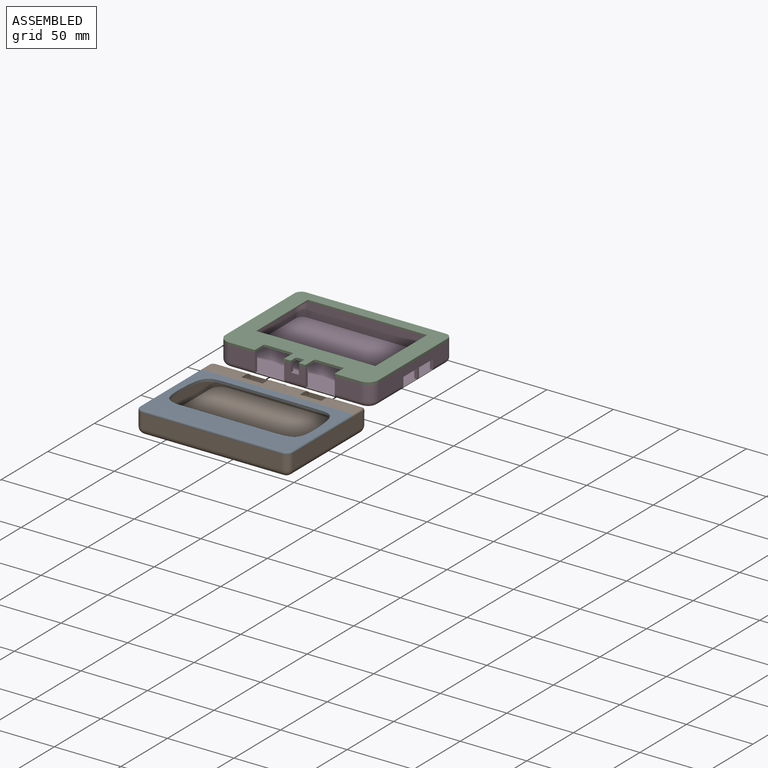
[diagram: assembled view]
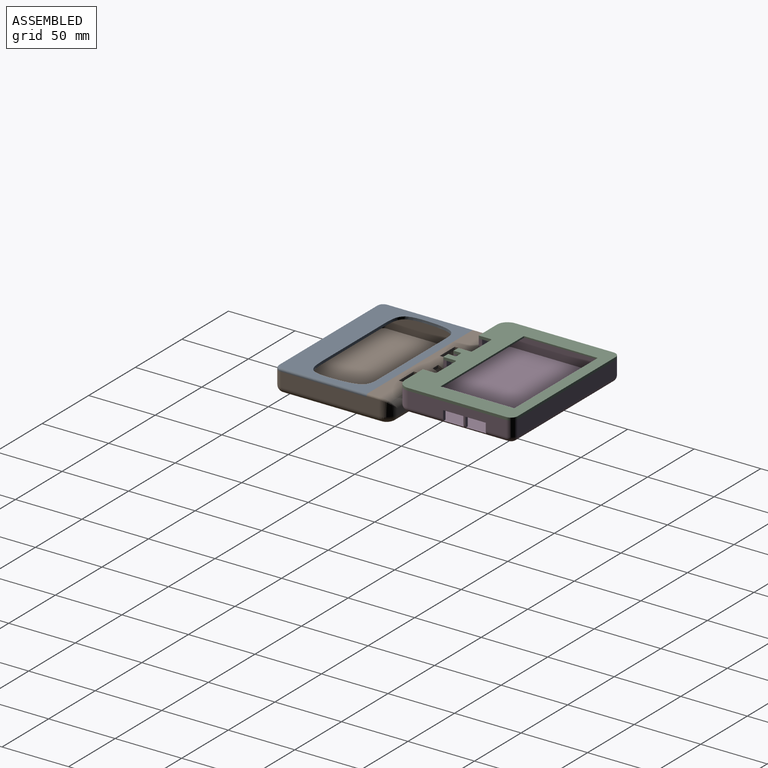
[diagram: assembled view, second angle]
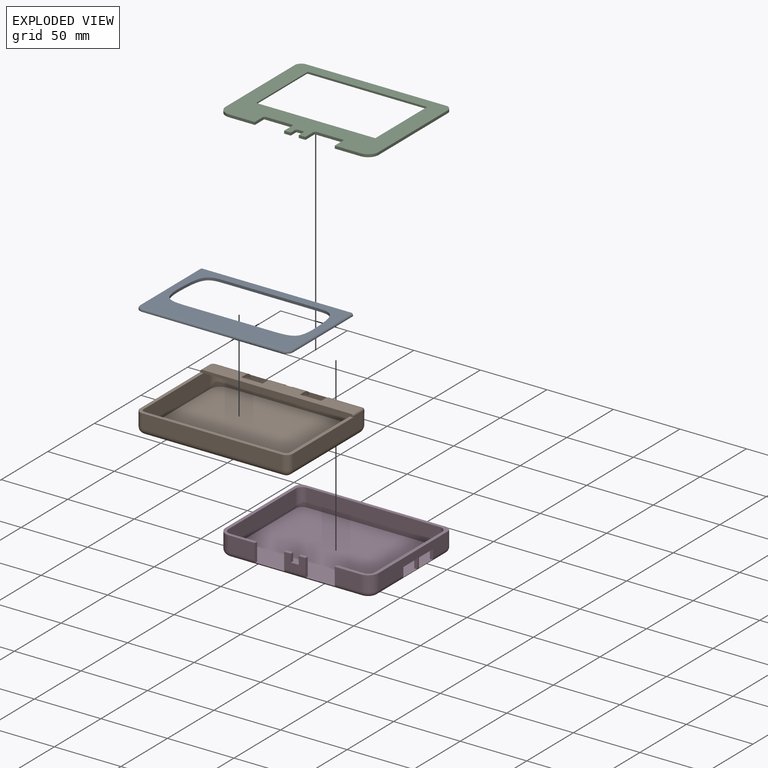
[diagram: exploded view]
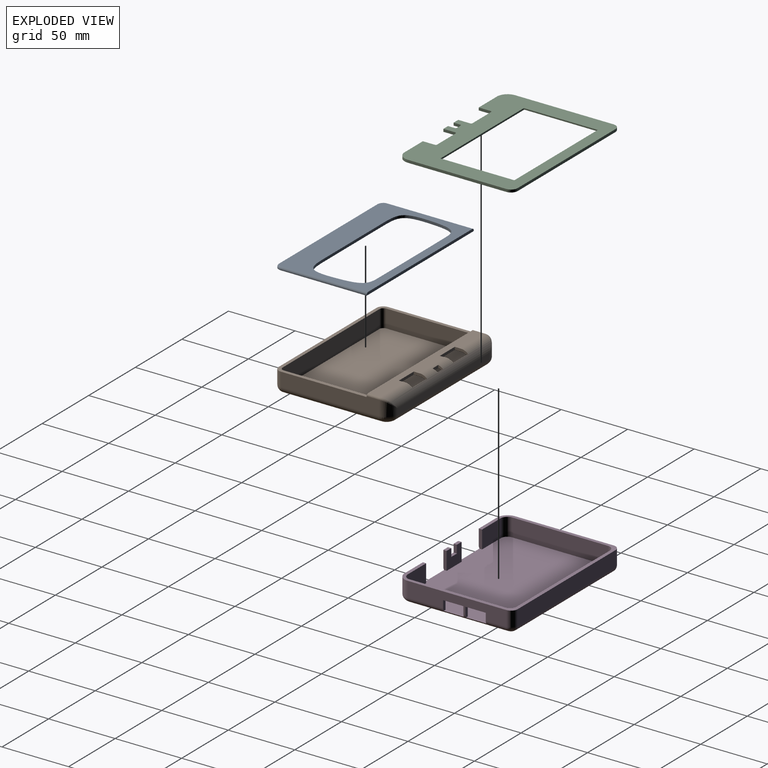
[diagram: exploded view, second angle]
ASSEMBLY  parts=4 mates=3
PART A: 36 faces, bbox 115.8x69.9x2 mm
  f0: plane 2x0mm, normal (0.01,1,0), area 0mm2, adj f28,f29,f30
  f1: extruded ~8.82x2mm, area 17.8mm2, adj f2,f26,f29,f30
  f2: plane 69.31x2mm, normal (0,1,0), area 138.6mm2, adj f1,f3,f29,f30
  f3: extruded ~8.8x2mm, area 17.8mm2, adj f2,f4,f29,f30
  f4: extruded ~4.99x3.15mm, area 12mm2, adj f3,f5,f29,f30
  f5: extruded ~2.78x2mm, area 6.2mm2, adj f4,f6,f29,f30
  f6: extruded ~8.64x2mm, area 17.5mm2, adj f5,f7,f29,f30
  f7: extruded ~11.97x2mm, area 24mm2, adj f6,f8,f29,f30
  f8: extruded ~9.53x2mm, area 19.5mm2, adj f7,f9,f29,f30
  f9: extruded ~3.98x2.46mm, area 9.4mm2, adj f8,f10,f29,f30
  f10: extruded ~7.81x2.47mm, area 16.7mm2, adj f9,f11,f29,f30
  f11: extruded ~22.37x2mm, area 44.7mm2, adj f10,f12,f29,f30
  f12: plane 16.01x2mm, normal (0,-1,0), area 32mm2, adj f11,f13,f29,f30
  f13: plane 16x2mm, normal (0,-1,0), area 32mm2, adj f12,f14,f29,f30
  f14: extruded ~22.37x2mm, area 44.7mm2, adj f13,f15,f29,f30
  f15: extruded ~7.81x2.47mm, area 16.7mm2, adj f14,f16,f29,f30
  f16: extruded ~3.98x2.46mm, area 9.4mm2, adj f15,f17,f29,f30
  f17: extruded ~9.53x2mm, area 19.5mm2, adj f16,f18,f29,f30
  f18: extruded ~11.97x2mm, area 24mm2, adj f17,f19,f29,f30
  f19: extruded ~8.64x2mm, area 17.5mm2, adj f18,f20,f29,f30
  f20: extruded ~2.78x2mm, area 6.2mm2, adj f19,f26,f29,f30
  f21: cylinder r=5mm len=5mm, axis (0,0,-1), area 3.9mm2, adj f22,f27,f30,f32
  f22: plane 64.5x0.5mm, normal (1,0,0), area 32.3mm2, adj f21,f23,f30,f31
  f23: plane 115x2mm, normal (0,1,0), area 229mm2, adj f22,f24,f29,f30,f31,f35
  f24: plane 64.5x0.5mm, normal (-1,0,0), area 32.3mm2, adj f23,f25,f30,f35
  f25: cylinder r=5mm len=5mm, axis (0,0,-1), area 3.9mm2, adj f24,f27,f30,f34
  f26: extruded ~4.99x3.15mm, area 12mm2, adj f1,f20,f29,f30
  f27: plane 105x0.5mm, normal (0,-1,0), area 52.5mm2, adj f21,f25,f30,f33
  f28: plane 2x0mm, normal (0.01,-1,0), area 0mm2, adj f0,f29,f30
  f29: plane 112x68mm, normal (0,0,1), area 3328.4mm2, adj f0,f1,f2,f3,f4,f5,f6,f7
  f30: plane 115x69.5mm, normal (0,0,-1), area 3699.4mm2, adj f0,f1,f2,f3,f4,f5,f6,f7
  f31: cylinder r=1.5mm len=64.5mm, axis (0,-1,0), area 152mm2, adj f22,f23,f29,f32
  f32: torus R=3.5mm, axis (0,0,1), area 16.5mm2, adj f21,f29,f31,f33
  f33: cylinder r=1.5mm len=105mm, axis (-1,0,0), area 247.4mm2, adj f27,f29,f32,f34
  f34: torus R=3.5mm, axis (0,0,1), area 16.5mm2, adj f25,f29,f33,f35
  f35: cylinder r=1.5mm len=64.5mm, axis (0,1,0), area 152mm2, adj f23,f24,f29,f34
PART B: 47 faces, bbox 115x87x17.5 mm
  f0: plane 112x9.5mm, normal (0,0,1), area 920mm2, adj f2,f18,f37,f38,f39,f40,f41,f42
  f1: plane 110x9.5mm, normal (0,0,-1), area 900.3mm2, adj f3,f4,f5,f16,f17,f18,f30,f31
  f2: cylinder r=8mm len=112mm, axis (-1,0,0), area 1129.8mm2, adj f0,f6,f32,f34,f35,f36,f38,f39
  f3: cylinder r=8mm len=24.6mm, axis (-1,0,0), area 135.8mm2, adj f1,f30,f32,f41
  f4: cylinder r=8mm len=28mm, axis (-1,0,0), area 145.5mm2, adj f1,f32,f34,f35,f36,f38,f42
  f5: cylinder r=8mm len=24.6mm, axis (-1,0,0), area 135.8mm2, adj f1,f31,f32,f39
  f6: plane 99x4.5mm, normal (0,1,0), area 445.5mm2, adj f2,f9,f10,f23
  f7: plane 74x11mm, normal (1,0,0), area 781.8mm2, adj f9,f12,f18,f19,f33,f45
  f8: plane 74x11mm, normal (-1,0,0), area 781.8mm2, adj f10,f13,f18,f26,f33,f43
  f9: cylinder r=8mm len=11mm, axis (0,0,-1), area 108.5mm2, adj f6,f7,f21,f46
  f10: cylinder r=8mm len=11mm, axis (0,0,-1), area 108.5mm2, adj f6,f8,f25,f44
  f11: cylinder r=3mm len=13.5mm, axis (0,0,-1), area 63.6mm2, adj f14,f17,f28,f33
  f12: cylinder r=5mm len=10.5mm, axis (0,0,-1), area 82.5mm2, adj f7,f20,f29,f33
  f13: cylinder r=5mm len=10.5mm, axis (0,0,-1), area 82.5mm2, adj f8,f24,f29,f33
  f14: plane 104x13.5mm, normal (0,1,0), area 1404mm2, adj f11,f15,f28,f33
  f15: cylinder r=3mm len=13.5mm, axis (0,0,-1), area 63.6mm2, adj f14,f16,f28,f33
  f16: plane 71x13.5mm, normal (-1,0,0), area 958.5mm2, adj f1,f15,f28,f30,f33
  f17: plane 71x13.5mm, normal (1,0,0), area 958.5mm2, adj f1,f11,f28,f31,f33
  f18: plane 115x2mm, normal (0,-1,0), area 229mm2, adj f0,f1,f7,f8,f33,f43,f45
  f19: cylinder r=5mm len=74mm, axis (0,1,0), area 581.2mm2, adj f7,f20,f21,f27
  f20: sphere r=5mm, area 39.3mm2, adj f12,f19,f22
  f21: torus R=3mm, axis (0,0,1), area 76.3mm2, adj f9,f19,f23,f27
  f22: cylinder r=5mm len=105mm, axis (1,0,0), area 824.7mm2, adj f20,f24,f27,f29
  f23: cylinder r=5mm len=99mm, axis (-1,0,0), area 777.5mm2, adj f6,f21,f25,f27
  f24: sphere r=5mm, area 39.3mm2, adj f13,f22,f26
  f25: torus R=3mm, axis (0,0,1), area 76.3mm2, adj f10,f23,f26,f27
  f26: cylinder r=5mm len=74mm, axis (0,-1,0), area 581.2mm2, adj f8,f24,f25,f27
  f27: plane 105x77mm, normal (0,0,-1), area 8081.1mm2, adj f19,f21,f22,f23,f25,f26
  f28: plane 110x82mm, normal (0,0,1), area 8988.7mm2, adj f11,f14,f15,f16,f17,f30,f31,f32
  f29: plane 105x10.5mm, normal (0,-1,0), area 1102.5mm2, adj f12,f13,f22,f33
  f30: cylinder r=8mm len=13.5mm, axis (0,0,-1), area 158.8mm2, adj f1,f3,f16,f28,f32
  f31: cylinder r=8mm len=13.5mm, axis (0,0,-1), area 158.8mm2, adj f1,f5,f17,f28,f32
  f32: plane 94x13.31mm, normal (0,-1,0), area 1139.1mm2, adj f2,f3,f4,f5,f28,f30,f31,f34
  f33: plane 115x69.5mm, normal (0,0,1), area 615.6mm2, adj f7,f8,f11,f12,f13,f14,f15,f16
  f34: plane 3.94x3.5mm, normal (-1,0,0), area 7mm2, adj f2,f4,f32,f36
  f35: plane 3.94x3.5mm, normal (1,0,0), area 7mm2, adj f2,f4,f32,f36
  f36: plane 6x2mm, normal (0,1,0), area 12mm2, adj f2,f4,f34,f35
  f37: plane 16x2mm, normal (0,1,0), area 32mm2, adj f0,f1,f38,f39
  f38: plane 10x4.19mm, normal (-1,0,0), area 20mm2, adj f0,f1,f2,f4,f32,f37
  f39: plane 10x4.19mm, normal (1,0,0), area 20mm2, adj f0,f1,f2,f5,f32,f37
  f40: plane 16x2mm, normal (0,1,0), area 32mm2, adj f0,f1,f41,f42
  f41: plane 10x4.19mm, normal (-1,0,0), area 20mm2, adj f0,f1,f2,f3,f32,f40
  f42: plane 10x4.19mm, normal (1,0,0), area 20mm2, adj f0,f1,f2,f4,f32,f40
  f43: cylinder r=1.5mm len=9.5mm, axis (0,1,0), area 22.4mm2, adj f0,f8,f18,f44
  f44: bspline ~9.24x8mm, area 20.4mm2, adj f2,f10,f43
  f45: cylinder r=1.5mm len=9.5mm, axis (0,-1,0), area 22.4mm2, adj f0,f7,f18,f46
  f46: bspline ~9.24x8mm, area 20.4mm2, adj f2,f9,f45
PART C: 43 faces, bbox 115x87x2 mm
  f0: plane 1x1mm, normal (0,0,-1), area 0.2mm2, adj f17,f18,f32
  f1: plane 1x1mm, normal (0,0,-1), area 0.2mm2, adj f21,f22,f34
  f2: plane 1x1mm, normal (0,0,-1), area 0.2mm2, adj f18,f19,f33
  f3: plane 1x1mm, normal (0,0,-1), area 0.2mm2, adj f25,f26,f37
  f4: plane 1x1mm, normal (0,0,-1), area 0.2mm2, adj f22,f23,f36
  f5: plane 97.5x57.5mm, normal (0,0,-1), area 639mm2, adj f6,f7,f8,f29,f38,f39,f40,f41
  f6: plane 55.5x1mm, normal (1,0,0), area 55.5mm2, adj f5,f7,f29,f30
  f7: plane 89.5x1mm, normal (0,-1,0), area 89.5mm2, adj f5,f6,f8,f30
  f8: plane 55.5x1mm, normal (-1,0,0), area 55.5mm2, adj f5,f7,f29,f30
  f9: cylinder r=8mm len=8mm, axis (0,0,-1), area 25.1mm2, adj f10,f28,f30,f42
  f10: plane 74x2mm, normal (1,0,0), area 148mm2, adj f9,f11,f30,f42
  f11: cylinder r=5mm len=5mm, axis (0,0,-1), area 15.7mm2, adj f10,f12,f30,f42
  f12: plane 105x2mm, normal (0,1,0), area 210mm2, adj f11,f13,f30,f42
  f13: cylinder r=5mm len=5mm, axis (0,0,-1), area 15.7mm2, adj f12,f14,f30,f42
  f14: plane 74x2mm, normal (-1,0,0), area 148mm2, adj f13,f15,f30,f42
  f15: cylinder r=8mm len=8mm, axis (0,0,-1), area 25.1mm2, adj f14,f16,f30,f42
  f16: plane 19.5x2mm, normal (0,-1,0), area 39mm2, adj f15,f17,f30,f42
  f17: plane 10x2mm, normal (1,0,0), area 19mm2, adj f0,f16,f18,f30,f32,f42
  f18: plane 22x2mm, normal (0,-1,0), area 42mm2, adj f0,f2,f17,f19,f30,f32,f33,f42
  f19: plane 10x2mm, normal (-1,0,0), area 19mm2, adj f2,f18,f20,f30,f33,f42
  f20: plane 5x2mm, normal (0,-1,0), area 10mm2, adj f19,f21,f30,f42
  f21: plane 6x2mm, normal (1,0,0), area 11mm2, adj f1,f20,f22,f30,f34,f42
  f22: plane 6x2mm, normal (0,-1,0), area 10mm2, adj f1,f4,f21,f23,f30,f34,f36,f42
  f23: plane 6x2mm, normal (-1,0,0), area 11mm2, adj f4,f22,f24,f30,f36,f42
  f24: plane 5x2mm, normal (0,-1,0), area 10mm2, adj f23,f25,f30,f42
  f25: plane 10x2mm, normal (1,0,0), area 19mm2, adj f3,f24,f26,f30,f37,f42
  f26: plane 22x2mm, normal (0,-1,0), area 42mm2, adj f3,f25,f27,f30,f31,f35,f37,f42
  f27: plane 10x2mm, normal (-1,0,0), area 19mm2, adj f26,f28,f30,f31,f35,f42
  f28: plane 19.5x2mm, normal (0,-1,0), area 39mm2, adj f9,f27,f30,f42
  f29: plane 89.5x1mm, normal (0,1,0), area 89.5mm2, adj f5,f6,f8,f30
  f30: plane 115x87mm, normal (0,0,1), area 4524.8mm2, adj f6,f7,f8,f9,f10,f11,f12,f13
  f31: plane 1x1mm, normal (0,0,-1), area 0.2mm2, adj f26,f27,f35
  f32: cylinder r=1mm len=1mm, axis (0,0,-1), area 1.6mm2, adj f0,f17,f18,f30
  f33: cylinder r=1mm len=1mm, axis (0,0,1), area 1.6mm2, adj f2,f18,f19,f30
  f34: cylinder r=1mm len=1mm, axis (0,0,-1), area 1.6mm2, adj f1,f21,f22,f30
  f35: cylinder r=1mm len=1mm, axis (0,0,-1), area 1.6mm2, adj f26,f27,f30,f31
  f36: cylinder r=1mm len=1mm, axis (0,0,1), area 1.6mm2, adj f4,f22,f23,f30
  f37: cylinder r=1mm len=1mm, axis (0,0,1), area 1.6mm2, adj f3,f25,f26,f30
  f38: plane 97.5x1mm, normal (0,1,0), area 97.5mm2, adj f5,f39,f41,f42
  f39: plane 57.5x1mm, normal (1,0,0), area 57.5mm2, adj f5,f38,f40,f42
  f40: plane 97.5x1mm, normal (0,-1,0), area 97.5mm2, adj f5,f39,f41,f42
  f41: plane 57.5x1mm, normal (-1,0,0), area 57.5mm2, adj f5,f38,f40,f42
  f42: plane 115x87mm, normal (0,0,-1), area 3884.6mm2, adj f9,f10,f11,f12,f13,f14,f15,f16
PART D: 46 faces, bbox 116.3x87.7x15.5 mm
  f0: plane 5x2.5mm, normal (0,0,1), area 12.5mm2, adj f1,f5,f28,f44
  f1: plane 16x13.5mm, normal (0,1,0), area 180mm2, adj f0,f6,f27,f28,f29,f43,f44,f45
  f2: plane 72x13.5mm, normal (-1,0,0), area 743.2mm2, adj f6,f16,f25,f26,f37,f38,f39,f40
  f3: cylinder r=4mm len=74mm, axis (0,1,0), area 401.1mm2, adj f6,f8,f15,f32,f35,f37,f38,f40
  f4: plane 19.5x11.5mm, normal (0,-1,0), area 224.3mm2, adj f13,f19,f26,f36
  f5: plane 16x11.5mm, normal (0,-1,0), area 148mm2, adj f0,f27,f28,f29,f36,f43,f44,f45
  f6: plane 111.96x83.96mm, normal (0,0,1), area 9144.9mm2, adj f1,f2,f3,f16,f17,f18,f19,f20
  f7: cylinder r=8mm len=11.5mm, axis (0,0,-1), area 144.5mm2, adj f8,f14,f26,f35
  f8: plane 74x11.5mm, normal (1,0,0), area 683.2mm2, adj f3,f7,f9,f26,f37,f38,f39,f40
  f9: cylinder r=5mm len=11.5mm, axis (0,0,-1), area 90.3mm2, adj f8,f10,f26,f32
  f10: plane 105x11.5mm, normal (0,1,0), area 1207.5mm2, adj f9,f11,f26,f30
  f11: cylinder r=5mm len=11.5mm, axis (0,0,-1), area 90.3mm2, adj f10,f12,f26,f31
  f12: plane 74x11.5mm, normal (-1,0,0), area 851mm2, adj f11,f13,f26,f33
  f13: cylinder r=8mm len=11.5mm, axis (0,0,-1), area 144.5mm2, adj f4,f12,f26,f34
  f14: plane 19.5x11.5mm, normal (0,-1,0), area 224.2mm2, adj f7,f18,f26,f36
  f15: plane 107x79mm, normal (0,0,-1), area 8445.7mm2, adj f3,f30,f31,f32,f33,f34,f35,f36
  f16: cylinder r=5mm len=13.5mm, axis (0,0,-1), area 106mm2, adj f2,f6,f17,f26
  f17: plane 20x13.5mm, normal (0,1,0), area 270mm2, adj f6,f16,f18,f26
  f18: plane 13.5x2.5mm, normal (-1,0,0), area 33.4mm2, adj f6,f14,f17,f26,f36
  f19: plane 13.5x2.5mm, normal (1,0,0), area 33.4mm2, adj f4,f6,f20,f26,f36
  f20: plane 20x13.5mm, normal (0,1,0), area 270mm2, adj f6,f19,f21,f26
  f21: cylinder r=5mm len=13.5mm, axis (0,0,-1), area 106mm2, adj f6,f20,f22,f26
  f22: plane 72x13.5mm, normal (1,0,0), area 972mm2, adj f6,f21,f23,f26
  f23: cylinder r=5mm len=13.5mm, axis (0,0,-1), area 106mm2, adj f6,f22,f24,f26
  f24: plane 100x13.5mm, normal (0,-1,0), area 1350mm2, adj f6,f23,f25,f26
  f25: cylinder r=5mm len=13.5mm, axis (0,0,-1), area 106mm2, adj f2,f6,f24,f26
  f26: plane 115x87mm, normal (0,0,1), area 818.3mm2, adj f2,f4,f7,f8,f9,f10,f11,f12
  f27: plane 13.5x2.5mm, normal (-1,0,0), area 33.4mm2, adj f1,f5,f6,f29,f36
  f28: plane 13.5x2.5mm, normal (1,0,0), area 33.4mm2, adj f0,f1,f5,f6,f36
  f29: plane 5x2.5mm, normal (0,0,1), area 12.5mm2, adj f1,f5,f27,f43
  f30: cylinder r=4mm len=105mm, axis (-1,0,0), area 659.7mm2, adj f10,f15,f31,f32
  f31: torus R=1mm, axis (0,0,1), area 35mm2, adj f11,f15,f30,f33
  f32: torus R=1mm, axis (0,0,1), area 35mm2, adj f3,f9,f15,f30
  f33: cylinder r=4mm len=74mm, axis (0,-1,0), area 465mm2, adj f12,f15,f31,f34
  f34: torus R=4mm, axis (0,0,1), area 64.6mm2, adj f13,f15,f33,f36
  f35: torus R=4mm, axis (0,0,1), area 64.6mm2, adj f3,f7,f15,f36
  f36: cylinder r=4mm len=99mm, axis (1,0,0), area 529.9mm2, adj f4,f5,f6,f14,f15,f18,f19,f27
  f37: plane 7.5x2.5mm, normal (0,1,0), area 18.4mm2, adj f2,f3,f6,f8,f39
  f38: plane 7.5x2.5mm, normal (0,-1,0), area 18.4mm2, adj f2,f3,f6,f8,f39
  f39: plane 15.25x2.5mm, normal (0,0,-1), area 38.1mm2, adj f2,f8,f37,f38
  f40: plane 7.5x2.5mm, normal (0,1,0), area 18.4mm2, adj f2,f3,f6,f8,f42
  f41: plane 7.5x2.5mm, normal (0,-1,0), area 18.4mm2, adj f2,f3,f6,f8,f42
  f42: plane 15.25x2.5mm, normal (0,0,-1), area 38.1mm2, adj f2,f8,f40,f41
  f43: plane 6x2.5mm, normal (1,0,0), area 15mm2, adj f1,f5,f29,f45
  f44: plane 6x2.5mm, normal (-1,0,0), area 15mm2, adj f0,f1,f5,f45
  f45: plane 6x2.5mm, normal (0,0,1), area 15mm2, adj f1,f5,f43,f44
PLACE A t=(135.62,-9.4,40.8)mm
PLACE B t=(135.62,-9.4,25.3)mm
PLACE C t=(133.96,81.97,53.37)mm
PLACE D t=(133.96,81.97,36.87)mm
MATE fastened C.f42 <-> D.f26  axis (0,0,-1) through (191.46,38.97,52.37)mm
MATE fastened B.f13 <-> A.f25  axis (0,0,-1) through (83.12,-55.4,40.8)mm
MATE fastened C.f42 <-> D.f26  axis (0,0,-1) through (76.46,38.97,52.37)mm
